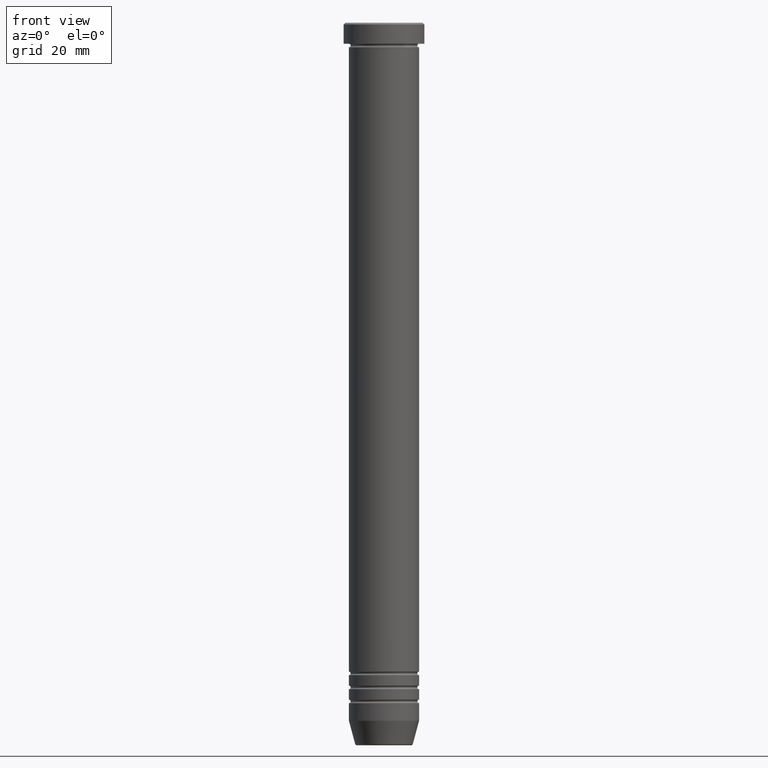
[diagram: clean part render]
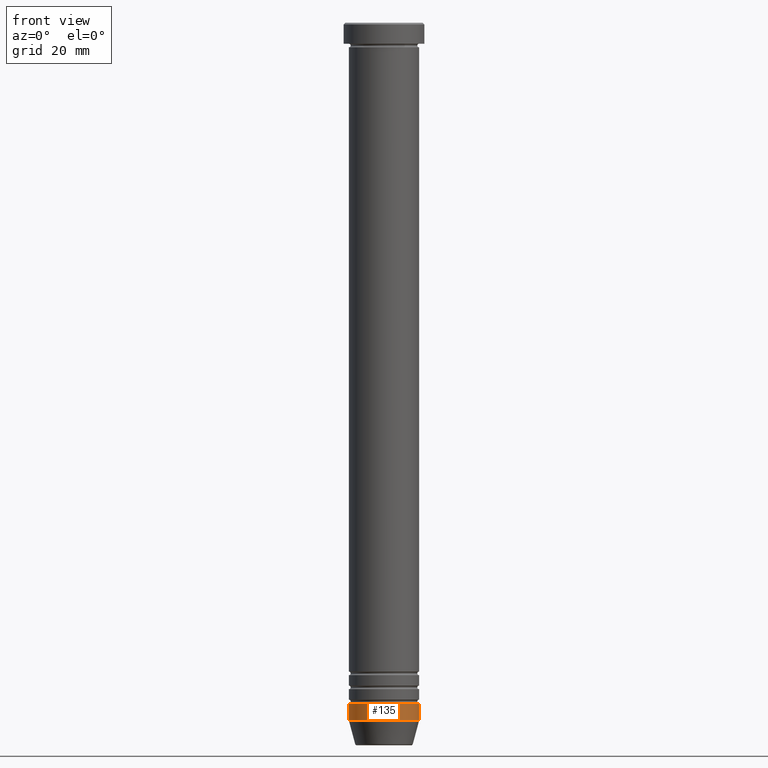
[diagram: same view with one face highlighted and labeled with its STEP entity id]
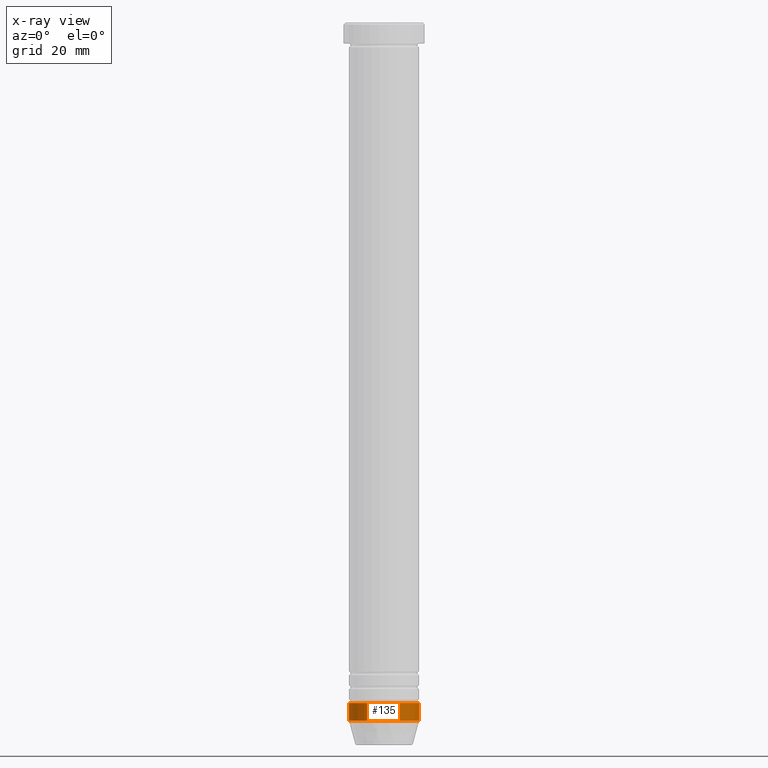
[diagram: x-ray of the same camera — body ghosted, the highlighted face saturated]
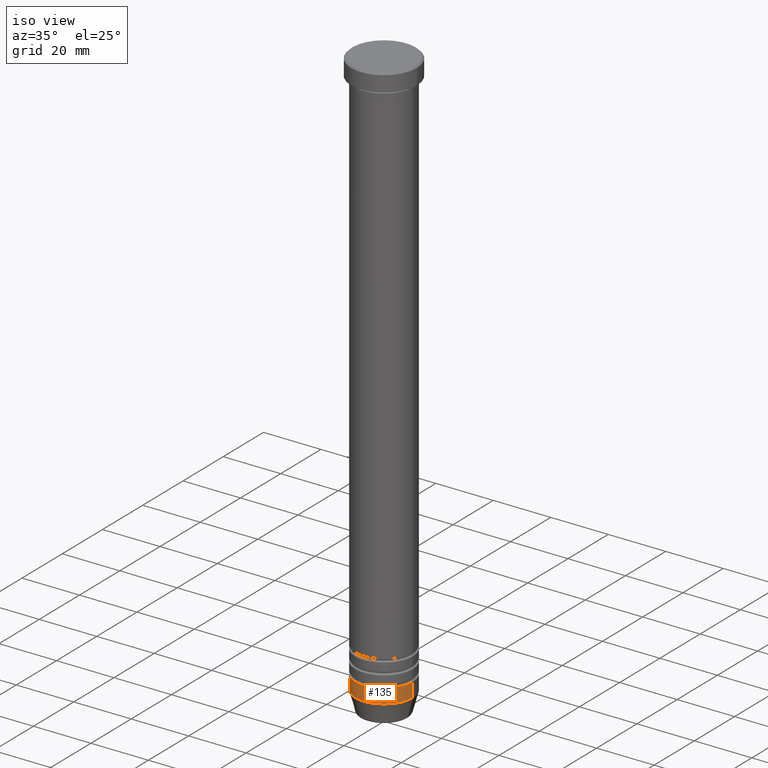
[diagram: same view with one face highlighted and labeled with its STEP entity id]
A machine part, front view. The second image highlights one B-rep face of the part: STEP entity #135.
The next image is the same camera in x-ray: the body ghosted, the highlighted face saturated — about 0% of this face is hidden behind the body in this view.
A second angle (iso view) of the same face is appended — the face is thin or edge-on in the first view.
In plain terms, the highlighted cylindrical surface (edge-blend (fillet) strip) has radius 10 mm, axis along (-0, -0, 1).
Its self-contained STEP definition (entity closure, byte-faithful):
#7 = CARTESIAN_POINT ( 'NONE',  ( -10.00000000000000000, 1.224646799147353256E-15, 0.000000000000000000 ) ) ;
#53 = CARTESIAN_POINT ( 'NONE',  ( -10.00000000000000000, 1.224646799147353256E-15, -199.0000000000000000 ) ) ;
#102 = DIRECTION ( 'NONE',  ( 1.000000000000000000, 0.000000000000000000, 0.000000000000000000 ) ) ;
#116 = VERTEX_POINT ( 'NONE', #53 ) ;
#135 = ADVANCED_FACE ( 'NONE', ( #1016 ), #1012, .T. ) ;
#209 = ORIENTED_EDGE ( 'NONE', *, *, #663, .T. ) ;
#219 = CARTESIAN_POINT ( 'NONE',  ( 0.000000000000000000, 0.000000000000000000, 0.000000000000000000 ) ) ;
#240 = LINE ( 'NONE', #870, #478 ) ;
#252 = DIRECTION ( 'NONE',  ( -0.000000000000000000, -0.000000000000000000, 1.000000000000000000 ) ) ;
#274 = CIRCLE ( 'NONE', #639, 10.00000000000000000 ) ;
#290 = VERTEX_POINT ( 'NONE', #729 ) ;
#305 = CIRCLE ( 'NONE', #857, 10.00000000000000000 ) ;
#377 = DIRECTION ( 'NONE',  ( 1.000000000000000000, 0.000000000000000000, 0.000000000000000000 ) ) ;
#400 = ORIENTED_EDGE ( 'NONE', *, *, #656, .T. ) ;
#430 = DIRECTION ( 'NONE',  ( 1.000000000000000000, 0.000000000000000000, 0.000000000000000000 ) ) ;
#437 = EDGE_LOOP ( 'NONE', ( #823, #209, #400, #791 ) ) ;
#478 = VECTOR ( 'NONE', #1127, 1000.000000000000000 ) ;
#508 = VERTEX_POINT ( 'NONE', #810 ) ;
#515 = EDGE_CURVE ( 'NONE', #116, #1031, #888, .T. ) ;
#591 = CARTESIAN_POINT ( 'NONE',  ( -10.00000000000000000, 1.224646799147353256E-15, -194.0000000000000000 ) ) ;
#639 = AXIS2_PLACEMENT_3D ( 'NONE', #683, #252, #102 ) ;
#656 = EDGE_CURVE ( 'NONE', #290, #508, #240, .T. ) ;
#663 = EDGE_CURVE ( 'NONE', #116, #290, #274, .T. ) ;
#683 = CARTESIAN_POINT ( 'NONE',  ( 0.000000000000000000, 0.000000000000000000, -199.0000000000000000 ) ) ;
#718 = AXIS2_PLACEMENT_3D ( 'NONE', #219, #934, #377 ) ;
#729 = CARTESIAN_POINT ( 'NONE',  ( 10.00000000000000000, 0.000000000000000000, -199.0000000000000000 ) ) ;
#791 = ORIENTED_EDGE ( 'NONE', *, *, #1069, .F. ) ;
#810 = CARTESIAN_POINT ( 'NONE',  ( 10.00000000000000000, 0.000000000000000000, -194.0000000000000000 ) ) ;
#823 = ORIENTED_EDGE ( 'NONE', *, *, #515, .F. ) ;
#857 = AXIS2_PLACEMENT_3D ( 'NONE', #884, #1066, #430 ) ;
#870 = CARTESIAN_POINT ( 'NONE',  ( 10.00000000000000000, 0.000000000000000000, 0.000000000000000000 ) ) ;
#884 = CARTESIAN_POINT ( 'NONE',  ( 0.000000000000000000, 0.000000000000000000, -194.0000000000000000 ) ) ;
#888 = LINE ( 'NONE', #7, #1111 ) ;
#934 = DIRECTION ( 'NONE',  ( -0.000000000000000000, -0.000000000000000000, 1.000000000000000000 ) ) ;
#1012 = CYLINDRICAL_SURFACE ( 'NONE', #718, 10.00000000000000000 ) ;
#1016 = FACE_OUTER_BOUND ( 'NONE', #437, .T. ) ;
#1031 = VERTEX_POINT ( 'NONE', #591 ) ;
#1066 = DIRECTION ( 'NONE',  ( -0.000000000000000000, -0.000000000000000000, 1.000000000000000000 ) ) ;
#1068 = DIRECTION ( 'NONE',  ( -0.000000000000000000, -0.000000000000000000, 1.000000000000000000 ) ) ;
#1069 = EDGE_CURVE ( 'NONE', #1031, #508, #305, .T. ) ;
#1111 = VECTOR ( 'NONE', #1068, 1000.000000000000000 ) ;
#1127 = DIRECTION ( 'NONE',  ( -0.000000000000000000, -0.000000000000000000, 1.000000000000000000 ) ) ;